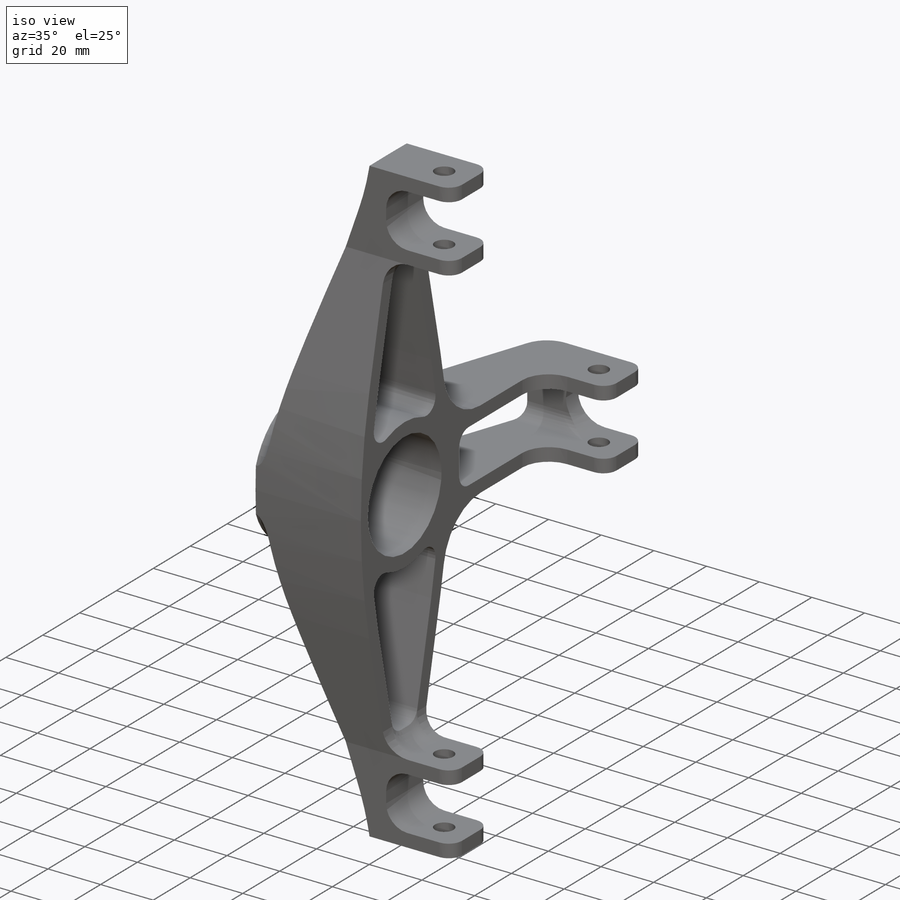
[diagram: iso view]
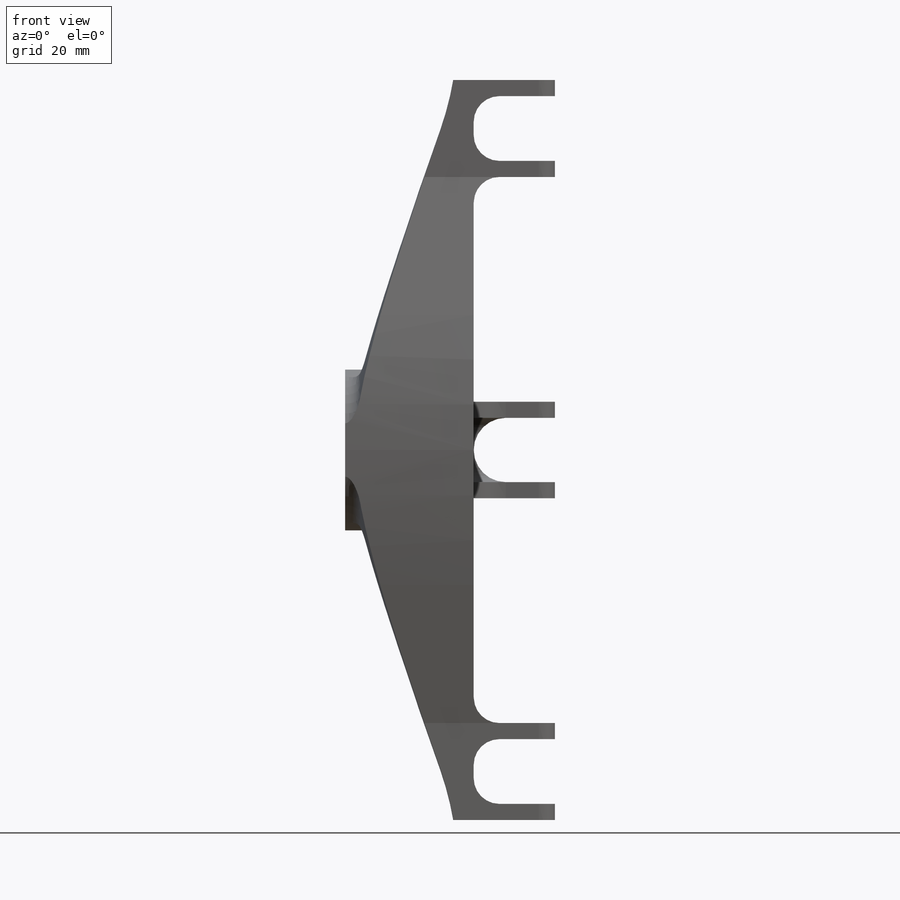
[diagram: front view]
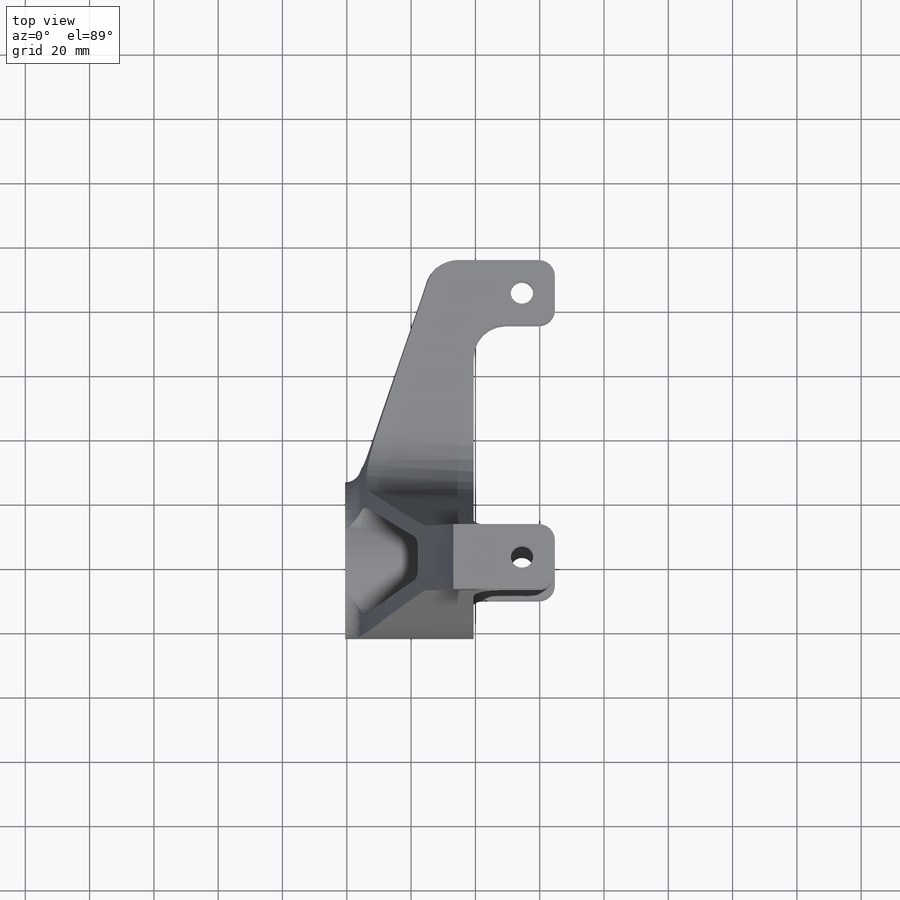
[diagram: top view]
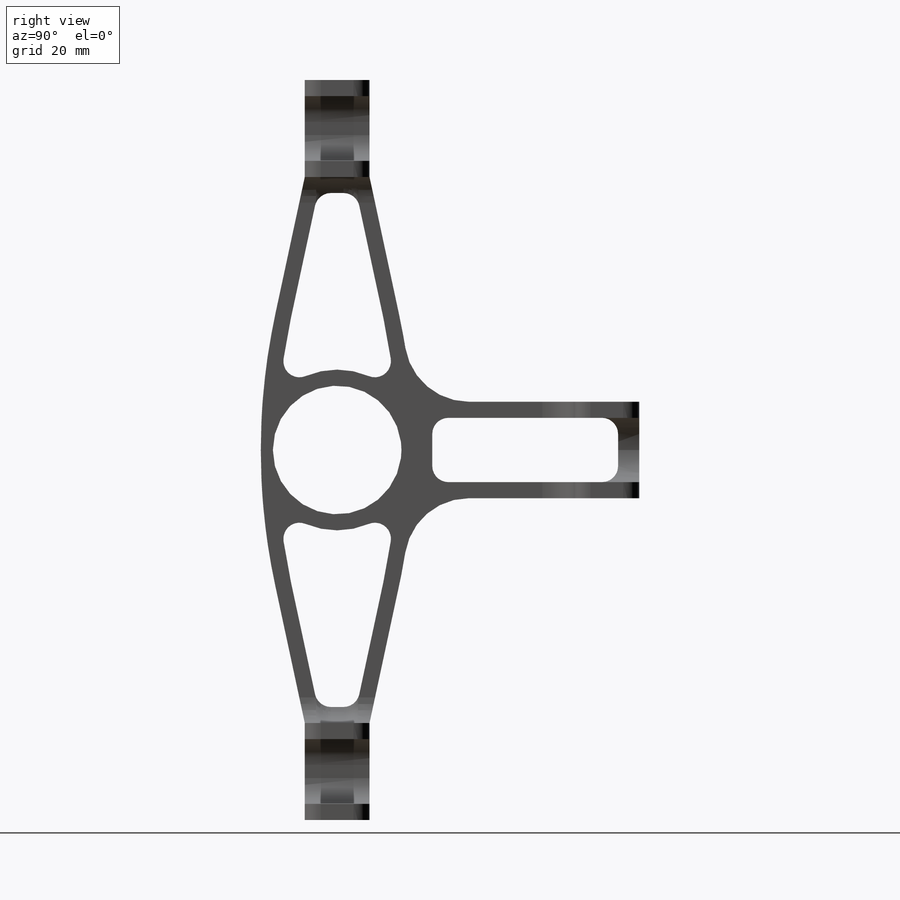
[diagram: right view]
SOLIDWORKS PART (.sldprt)
format: sldprt  version: not decoded by parser v0  size: 940,032 bytes
history: native  units: mm
features: sketch x15, cut_extrude x5, fillet x5, extrude x4, material x1, cut_revolve x1, mirror x1, delete_body x1 + 1 further entry (+11 scaffold rows collapsed)
feature tree (45):
  scaffold x11  (default folders/planes/origin — collapsed)
  material  "6061 Alloy"
  "Annotations"  RD1=30.14214mm RD2=20.14214mm RD3=20.14mm RD4=90deg RD5=20.14mm RD6=5mm RD7=10.266102mm
  sketch  "Sketch3"  dims[D1=200.0mm D2=~10.07107mm D3=~10.07107mm D4=~10.07107mm D5=~10.07107mm D6=10.07mm D7=10.07mm D8=5.0mm D9=5.0mm]
  extrude  "Boss-Extrude2"  Depth=30mm
  sketch  "Sketch4"
  sketch  "Sketch6"  dims[D1=7.0mm]
  sketch  "Sketch7"  dims[D1=40.0mm D2=200.0mm]
  extrude  "Boss-Extrude3"  Depth=40mm
  sketch  "Sketch10"  dims[c1.D1=5.0mm c1.D2=5.0mm c1.D3=4.5mm c1.D4=4.5mm c1.D5=4.5mm c1.D6=4.5mm c1.D7=3.0mm c1.D8=3.0mm c1.D11=3.0mm c1.D12=3.0mm c1.D13=5.0mm c1.D15=2.0mm c1.D16=2.0mm c1.D17=2.0mm c1.D18=2.0mm c1.D19=2.0mm c1.D20=2.0mm c1.D22=2.0mm c1.D23=2.0mm c1.D24=2.0mm c1.D25=2.0mm c2.D2=5.0mm c2.D4=5.0mm c2.D5=5.0mm c2.D6=5.0mm c2.D9=~3.400213mm c2.D10=~3.40021mm c2.D14=~3.40021mm c2.D21=~3.40021mm c2.D1=0.0mm c3.D2=5.0mm c3.D3=5.0mm c3.D13=5.0mm c3.D1=0.0mm c4.D2=5.0mm c4.D3=5.0mm]
  cut_extrude  "Cut-Extrude1"  [1 undecoded]
  sketch  "3DSketch1"
  sketch  "Sketch12"
  sketch  "Sketch14"  dims[c1.D1=52.0mm c1.D2=52.0mm c2.D1=9.0mm c2.D2=100.0mm c3.D1=8.0mm c3.D2=78.0mm c4.D1=5.0mm c4.D2=95.0mm]
  sketch  "3DSketch3"
  cut_extrude  "Cut-Extrude2"  [1 undecoded]
  fillet  "Fillet1"  Radius=8mm
  sketch  "Sketch15"
  cut_extrude  "Cut-Extrude3"  [1 undecoded]
  sketch  "Sketch17"  dims[D1=30.0mm]
  extrude  "Boss-Extrude4"  [1 undecoded]
  sketch  "Sketch20"  dims[c1.D1=20.14mm c2.D1=90.0deg c3.D1=5.0mm]
  extrude  "Boss-Extrude5"  [1 undecoded]
  sketch  "3DSketch5"
  sketch  "Sketch25"  dims[D2=5.0mm D1=10.2661mm]
  cut_extrude  "Cut-Extrude6"  [1 undecoded]
  fillet  "Fillet10"  Radius=5mm
  fillet  "Fillet11"  Radius=20mm
  sketch  "Sketch26"  dims[c1.D1=5.0mm c1.D2=5.0mm c1.D3=5.0mm c1.D4=5.0mm c2.D3=5.0mm c2.D4=5.0mm]
  cut_extrude  "Cut-Extrude7"  [1 undecoded]
  fillet  "Fillet12"  Radius=10mm
  cut_revolve  "Cut-Revolve2"  Angle=360deg
  fillet  "Fillet13"  Radius=10mm
  mirror  "Mirror1"
  delete_body  "Body-Delete1"
decode coverage: 17 of 32 modeling features carry decoded parameters; 1 rows unclassified (native names shown)
note: ~ marks probable driven/reference dimensions
note: 7 parameter values undecoded
summary: no parameter record found for 7 features
note: suppression state not decoded; provenance and decode notes live in map.json
